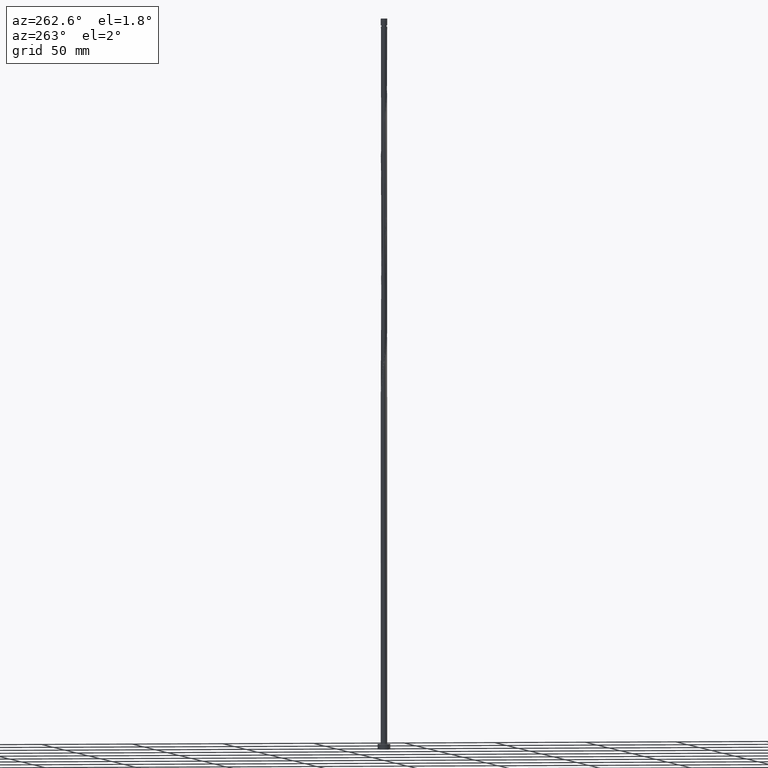
[diagram: clean part render]
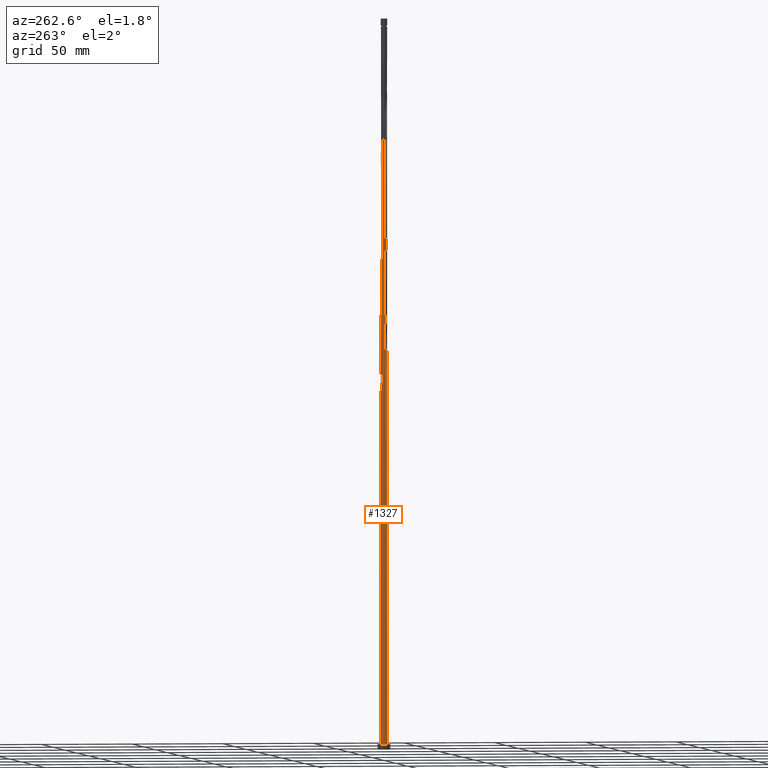
[diagram: same view with one face highlighted and labeled with its STEP entity id]
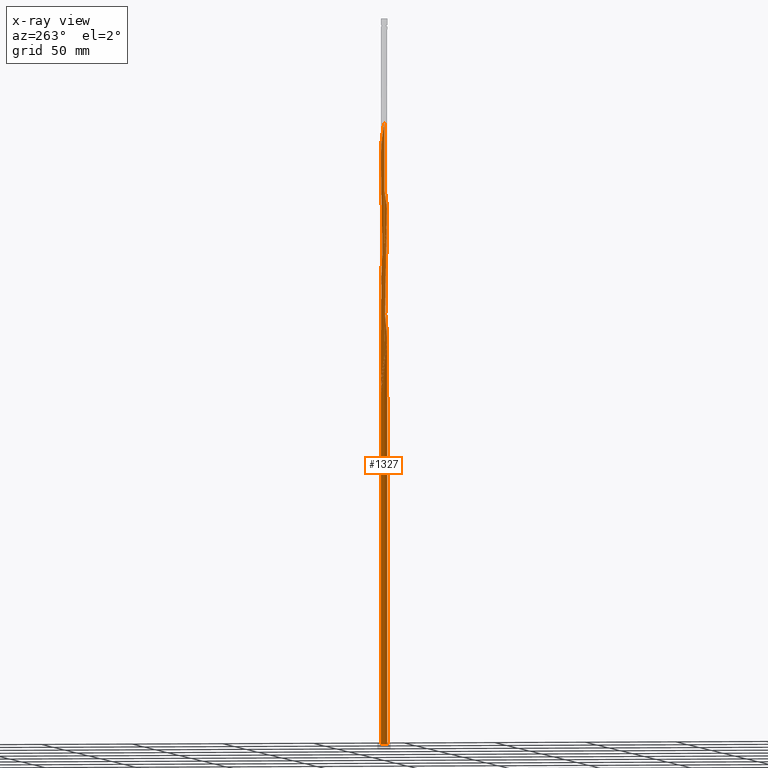
[diagram: x-ray of the same camera — body ghosted, the highlighted face saturated]
A machine part, auxiliary view. The second image highlights one B-rep face of the part: STEP entity #1327.
The next image is the same camera in x-ray: the body ghosted, the highlighted face saturated — about 0% of this face is hidden behind the body in this view.
In plain terms, the highlighted cylindrical surface (bore or boss wall) has radius 1.75 mm, axis along (-0, -0, -1).
Its self-contained STEP definition (entity closure, byte-faithful):
#5 = CARTESIAN_POINT ( 'NONE',  ( 1.507515167182444271, -0.8887620720501611116, 304.4751674120614666 ) ) ;
#7 = CARTESIAN_POINT ( 'NONE',  ( -1.742006628276570046, 0.1670715626325919301, 213.3640563009503239 ) ) ;
#13 = CARTESIAN_POINT ( 'NONE',  ( 0.3794151541219238366, 1.708374707382032565, 324.4751674120615235 ) ) ;
#15 = CARTESIAN_POINT ( 'NONE',  ( -1.432935985591727190, 1.021286244534576282, 207.8085007453948094 ) ) ;
#19 = CARTESIAN_POINT ( 'NONE',  ( 0.1998577369553105887, 1.748252847004226451, 325.5862785231725525 ) ) ;
#52 = DIRECTION ( 'NONE',  ( -0.000000000000000000, -0.000000000000000000, -1.000000000000000000 ) ) ;
#86 = CARTESIAN_POINT ( 'NONE',  ( 0.3794151541219238366, 1.708374707382032565, 257.8085007453947810 ) ) ;
#96 = CARTESIAN_POINT ( 'NONE',  ( 1.669203472836608748, 0.5256041916406426484, 246.6973896342837236 ) ) ;
#103 = CARTESIAN_POINT ( 'NONE',  ( -1.523448115906757439, -0.8611653953452617083, 282.2529451898392949 ) ) ;
#111 = VERTEX_POINT ( 'NONE', #820 ) ;
#113 = CARTESIAN_POINT ( 'NONE',  ( -1.523448115906757439, -0.8611653953452617083, 215.5862785231725240 ) ) ;
#123 = CARTESIAN_POINT ( 'NONE',  ( -0.1998577369553103666, -1.748252847004226229, 225.5862785231724956 ) ) ;
#133 = CARTESIAN_POINT ( 'NONE',  ( 0.7263150966484994697, 1.592157774964682915, 322.2529451898392381 ) ) ;
#143 = CARTESIAN_POINT ( 'NONE',  ( 0.5589725712885353914, 1.668496567759838900, 323.3640563009503239 ) ) ;
#151 = ORIENTED_EDGE ( 'NONE', *, *, #1837, .F. ) ;
#155 = CARTESIAN_POINT ( 'NONE',  ( -0.01593294872431299039, -1.749927467395422598, 293.3640563009503808 ) ) ;
#168 = CARTESIAN_POINT ( 'NONE',  ( 1.600927825098414692, -0.7303158432520414634, 305.5862785231724956 ) ) ;
#170 = CARTESIAN_POINT ( 'NONE',  ( -1.189285546401575466, 1.296892833351922736, 205.5862785231724956 ) ) ;
#184 = CARTESIAN_POINT ( 'NONE',  ( -1.311110765996650995, 1.159089538943249398, 206.6973896342836952 ) ) ;
#189 = FACE_OUTER_BOUND ( 'NONE', #1037, .T. ) ;
#231 = CARTESIAN_POINT ( 'NONE',  ( -0.7263150966484992477, -1.592157774964682915, 222.2529451898392381 ) ) ;
#243 = CARTESIAN_POINT ( 'NONE',  ( -1.613960246221784356, -0.7010445461559460245, 281.1418340787280385 ) ) ;
#253 = CARTESIAN_POINT ( 'NONE',  ( -0.5284993664679561443, 1.678397912213384524, 263.3640563009503239 ) ) ;
#257 = CARTESIAN_POINT ( 'NONE',  ( -1.600927825098414692, 0.7303158432520412413, 205.5862785231724956 ) ) ;
#264 = CARTESIAN_POINT ( 'NONE',  ( 1.289788318714685911, -1.182770515741389250, 235.5862785231725525 ) ) ;
#273 = CARTESIAN_POINT ( 'NONE',  ( -0.5589725712885353914, -1.668496567759838900, 223.3640563009502671 ) ) ;
#280 = DIRECTION ( 'NONE',  ( 0.000000000000000000, 0.000000000000000000, 1.000000000000000000 ) ) ;
#282 = CARTESIAN_POINT ( 'NONE',  ( -1.738675734985623222, 0.1987628953608089888, 342.2529451898391812 ) ) ;
#291 = CARTESIAN_POINT ( 'NONE',  ( -1.750000000000002442, -3.811845932269377646E-16, 343.4608352796510076 ) ) ;
#312 = CARTESIAN_POINT ( 'NONE',  ( -1.414102509266473851, 1.047208300848279761, 336.6973896342836383 ) ) ;
#314 = CARTESIAN_POINT ( 'NONE',  ( -1.041471584205018397, 1.406355907760723500, 204.4751674120614666 ) ) ;
#319 = ORIENTED_EDGE ( 'NONE', *, *, #496, .F. ) ;
#321 = CARTESIAN_POINT ( 'NONE',  ( -0.3794151541219228929, -1.708374707382032787, 291.1418340787280954 ) ) ;
#356 = VERTEX_POINT ( 'NONE', #1515 ) ;
#389 = CARTESIAN_POINT ( 'NONE',  ( -1.165474128162897083, 1.318332730634499184, 267.8085007453947242 ) ) ;
#394 = CARTESIAN_POINT ( 'NONE',  ( -1.750000000000000000, 2.242262313099648157E-17, 214.3783884333606977 ) ) ;
#398 = CARTESIAN_POINT ( 'NONE',  ( -1.432935985591729633, -1.021286244534576948, 216.6973896342836383 ) ) ;
#400 = CARTESIAN_POINT ( 'NONE',  ( -1.165474128162897083, 1.318332730634499184, 201.1418340787280954 ) ) ;
#407 = CARTESIAN_POINT ( 'NONE',  ( -0.3482456029873203796, 1.715000000000001856, 262.2529451898392949 ) ) ;
#410 = CARTESIAN_POINT ( 'NONE',  ( -1.289788318714686133, 1.182770515741389250, 202.2529451898392381 ) ) ;
#417 = CARTESIAN_POINT ( 'NONE',  ( 1.432935985591729633, 1.021286244534576282, 250.0307229676169811 ) ) ;
#426 = CARTESIAN_POINT ( 'NONE',  ( 1.724446699451431808, 0.3501638371253400495, 245.5862785231724672 ) ) ;
#437 = CARTESIAN_POINT ( 'NONE',  ( 1.041471584205020617, 1.406355907760725055, 320.0307229676170095 ) ) ;
#470 = CARTESIAN_POINT ( 'NONE',  ( 1.414102509266473851, -1.047208300848279983, 303.3640563009503239 ) ) ;
#472 = CARTESIAN_POINT ( 'NONE',  ( -1.724446699451429366, 0.3501638371253402160, 212.2529451898392381 ) ) ;
#476 = CARTESIAN_POINT ( 'NONE',  ( -1.041471584205020395, -1.406355907760725055, 286.6973896342836952 ) ) ;
#481 = VERTEX_POINT ( 'NONE', #1437 ) ;
#496 = EDGE_CURVE ( 'NONE', #1109, #1376, #545, .T. ) ;
#521 = CIRCLE ( 'NONE', #791, 1.750000000000000000 ) ;
#525 = CARTESIAN_POINT ( 'NONE',  ( -1.750000000000002220, 7.399465633228792017E-16, 210.1275019463177216 ) ) ;
#532 = CARTESIAN_POINT ( 'NONE',  ( -1.041471584205020395, -1.406355907760725055, 220.0307229676170380 ) ) ;
#543 = CARTESIAN_POINT ( 'NONE',  ( -1.717784912869533498, 0.3815050788614610111, 274.4751674120613529 ) ) ;
#545 = LINE ( 'NONE', #1305, #1777 ) ;
#551 = CARTESIAN_POINT ( 'NONE',  ( 0.8936576220084639921, 1.515818982169525153, 254.4751674120614382 ) ) ;
#559 = CARTESIAN_POINT ( 'NONE',  ( -1.311110765996653660, -1.159089538943250286, 217.8085007453947242 ) ) ;
#568 = CARTESIAN_POINT ( 'NONE',  ( -1.613960246221784356, -0.7010445461559460245, 214.4751674120614098 ) ) ;
#576 = CARTESIAN_POINT ( 'NONE',  ( -0.1998577369553103666, -1.748252847004226229, 292.2529451898390676 ) ) ;
#583 = DIRECTION ( 'NONE',  ( 0.000000000000000000, -3.965082230804130772E-14, -1.000000000000000000 ) ) ;
#585 = VERTEX_POINT ( 'NONE', #1147 ) ;
#586 = CARTESIAN_POINT ( 'NONE',  ( -1.659356368983974317, 0.5559104610567513483, 340.0307229676170095 ) ) ;
#594 = CARTESIAN_POINT ( 'NONE',  ( -0.6972041507806028271, 1.605118803121534654, 331.1418340787281522 ) ) ;
#595 = EDGE_CURVE ( 'NONE', #1376, #356, #1802, .T. ) ;
#597 = CARTESIAN_POINT ( 'NONE',  ( -1.523448115906754330, 0.8611653953452607091, 208.9196118565058384 ) ) ;
#605 = CARTESIAN_POINT ( 'NONE',  ( 1.759566557101712281, -0.01602071186015776444, 310.0307229676170095 ) ) ;
#611 = CARTESIAN_POINT ( 'NONE',  ( -1.289788318714686133, 1.182770515741389250, 335.5862785231724956 ) ) ;
#654 = ORIENTED_EDGE ( 'NONE', *, *, #496, .T. ) ;
#670 = CARTESIAN_POINT ( 'NONE',  ( 0.1998577369553105887, 1.748252847004226451, 258.9196118565058100 ) ) ;
#678 = AXIS2_PLACEMENT_3D ( 'NONE', #1810, #52, #1065 ) ;
#681 = ORIENTED_EDGE ( 'NONE', *, *, #883, .F. ) ;
#682 = CARTESIAN_POINT ( 'NONE',  ( 1.613960246221785244, 0.7010445461559453584, 247.8085007453947810 ) ) ;
#690 = CARTESIAN_POINT ( 'NONE',  ( -0.01593294872431299039, -1.749927467395422598, 226.6973896342836383 ) ) ;
#702 = CARTESIAN_POINT ( 'NONE',  ( 1.523448115906757439, 0.8611653953452615973, 248.9196118565058953 ) ) ;
#704 = CARTESIAN_POINT ( 'NONE',  ( -0.6972041507806028271, 1.605118803121534654, 197.8085007453947526 ) ) ;
#712 = CARTESIAN_POINT ( 'NONE',  ( 0.6972041507806024940, -1.605118803121534876, 231.1418340787281238 ) ) ;
#720 = CARTESIAN_POINT ( 'NONE',  ( 0.000000000000000000, 0.000000000000000000, 195.5862785231725525 ) ) ;
#722 = CARTESIAN_POINT ( 'NONE',  ( 1.015691531628073019, -1.425086212332092650, 300.0307229676170095 ) ) ;
#724 = DIRECTION ( 'NONE',  ( 1.000000000000000000, 0.000000000000000000, 0.000000000000000000 ) ) ;
#731 = CARTESIAN_POINT ( 'NONE',  ( 0.3482456029873206571, -1.715000000000001856, 295.5862785231726093 ) ) ;
#740 = CARTESIAN_POINT ( 'NONE',  ( 1.613960246221785244, 0.7010445461559453584, 314.4751674120614666 ) ) ;
#748 = CARTESIAN_POINT ( 'NONE',  ( -0.8936576220084627709, -1.515818982169526263, 287.8085007453947810 ) ) ;
#750 = CARTESIAN_POINT ( 'NONE',  ( -0.5589725712885339481, 1.668496567759836902, 201.1418340787280670 ) ) ;
#757 = CARTESIAN_POINT ( 'NONE',  ( 1.659356368983974539, -0.5559104610567517923, 306.6973896342836383 ) ) ;
#769 = EDGE_CURVE ( 'NONE', #111, #1109, #1687, .T. ) ;
#791 = AXIS2_PLACEMENT_3D ( 'NONE', #720, #583, #1045 ) ;
#799 = CARTESIAN_POINT ( 'NONE',  ( -1.750000000000002220, 7.399465633228792017E-16, 210.1275019463176932 ) ) ;
#806 = CARTESIAN_POINT ( 'NONE',  ( -1.750000000000000000, 0.000000000000000000, 3.000000000000000000 ) ) ;
#819 = CARTESIAN_POINT ( 'NONE',  ( 1.311110765996654326, 1.159089538943249398, 251.1418340787280954 ) ) ;
#820 = CARTESIAN_POINT ( 'NONE',  ( -0.3482456029873203796, 1.715000000000001634, 195.5862785231724956 ) ) ;
#831 = CARTESIAN_POINT ( 'NONE',  ( -1.432935985591729633, -1.021286244534576948, 283.3640563009503808 ) ) ;
#842 = CARTESIAN_POINT ( 'NONE',  ( -1.289788318714686133, 1.182770515741389250, 268.9196118565059237 ) ) ;
#846 = CARTESIAN_POINT ( 'NONE',  ( -1.659356368983974317, 0.5559104610567513483, 206.6973896342837236 ) ) ;
#851 = CARTESIAN_POINT ( 'NONE',  ( 1.015691531628073019, -1.425086212332092650, 233.3640563009503239 ) ) ;
#860 = CIRCLE ( 'NONE', #950, 1.750000000000000000 ) ;
#862 = CARTESIAN_POINT ( 'NONE',  ( -1.189285546401577243, -1.296892833351924068, 218.9196118565058384 ) ) ;
#871 = CARTESIAN_POINT ( 'NONE',  ( 1.669203472836608748, 0.5256041916406426484, 313.3640563009503239 ) ) ;
#878 = CARTESIAN_POINT ( 'NONE',  ( 0.5284993664679553671, -1.678397912213385634, 296.6973896342835815 ) ) ;
#881 = CARTESIAN_POINT ( 'NONE',  ( -1.750000000000000000, 2.242262313099648157E-17, 214.3783884333606977 ) ) ;
#883 = EDGE_CURVE ( 'NONE', #1508, #481, #1878, .T. ) ;
#890 =( BOUNDED_CURVE ( )  B_SPLINE_CURVE ( 2, ( #525, #1105, #1392, #1240, #1137, #568, #113, #398, #559, #862, #532, #1874, #231, #273, #1004, #123, #690, #1570, #1283, #1708, #712, #1145, #851, #1302, #264, #1013, #1115, #1435, #1733, #1418, #1849, #1446, #1725, #426, #96, #682, #702, #417, #819, #1152, #984, #551, #1717, #1410, #86, #670, #1263, #1274, #407, #253, #1829, #1698, #1589, #389, #842, #1840, #975, #1561, #1427, #543, #1125, #992, #1293, #1860, #1581, #243, #103, #831, #1633, #1465, #476, #748, #1332, #1474, #321, #576, #155, #1774, #731, #878, #1493, #910, #722, #1626, #1197, #470, #5, #168, #757, #1187, #1312, #605, #899, #1883, #871, #740, #1344, #1163, #1182, #1742, #437, #1351, #133, #143, #13, #19, #1598, #1022, #1452, #1607, #594, #1748, #1321, #1762, #611, #312, #1047, #1893, #586, #1483, #282, #1172, #291 ),
 .UNSPECIFIED., .F., .T. ) 
 B_SPLINE_CURVE_WITH_KNOTS ( ( 3, 2, 2, 2, 2, 2, 2, 2, 2, 2, 2, 2, 2, 2, 2, 2, 2, 2, 2, 2, 2, 2, 2, 2, 2, 2, 2, 2, 2, 2, 2, 2, 2, 2, 2, 2, 2, 2, 2, 2, 2, 2, 2, 2, 2, 2, 2, 2, 2, 2, 2, 2, 2, 2, 2, 2, 2, 2, 2, 2, 2, 3 ),
 ( 0.05452860127731142675, 0.05833333333333334814, 0.06666666666666665186, 0.07499999999999995559, 0.08333333333333337034, 0.09166666666666667407, 0.09999999999999997780, 0.1083333333333332815, 0.1166666666666666963, 0.1250000000000000000, 0.1333333333333333037, 0.1416666666666667185, 0.1500000000000000222, 0.1583333333333333259, 0.1666666666666666297, 0.1750000000000000444, 0.1833333333333333481, 0.1916666666666666519, 0.1999999999999999556, 0.2083333333333333703, 0.2166666666666666741, 0.2249999999999999778, 0.2333333333333332815, 0.2416666666666666963, 0.2500000000000000000, 0.2583333333333333037, 0.2666666666666667185, 0.2750000000000000222, 0.2833333333333333259, 0.2916666666666666297, 0.3000000000000000444, 0.3083333333333333481, 0.3166666666666666519, 0.3249999999999999556, 0.3333333333333333703, 0.3416666666666666741, 0.3499999999999999778, 0.3583333333333332815, 0.3666666666666666963, 0.3750000000000000000, 0.3833333333333333037, 0.3916666666666667185, 0.4000000000000000222, 0.4083333333333333259, 0.4166666666666666297, 0.4250000000000000444, 0.4333333333333333481, 0.4416666666666666519, 0.4499999999999999556, 0.4583333333333333703, 0.4666666666666666741, 0.4749999999999999778, 0.4833333333333332815, 0.4916666666666666963, 0.5000000000000000000, 0.5083333333333333037, 0.5166666666666666075, 0.5250000000000000222, 0.5333333333333333259, 0.5416666666666667407, 0.5500000000000000444, 0.5545286012773110729 ),
 .UNSPECIFIED. ) 
 CURVE ( )  GEOMETRIC_REPRESENTATION_ITEM ( )  RATIONAL_B_SPLINE_CURVE ( ( 0.9066196499552863219, 0.9068171577856990462, 0.9090909090909981005, 0.9041108139712461522, 0.9090909090909981005, 0.9041108139712461522, 0.9090909090909981005, 0.9041108139712461522, 0.9090909090909981005, 0.9041108139712461522, 0.9090909090909981005, 0.9041108139712461522, 0.9090909090909981005, 0.9041108139712461522, 0.9090909090909981005, 0.9041108139712461522, 0.9090909090909981005, 0.9041108139712461522, 0.9090909090909981005, 0.9041108139712461522, 0.9090909090909981005, 0.9041108139712461522, 0.9090909090909981005, 0.9041108139712461522, 0.9090909090909981005, 0.9041108139712461522, 0.9090909090909981005, 0.9041108139712461522, 0.9090909090909981005, 0.9041108139712461522, 0.9090909090909981005, 0.9041108139712461522, 0.9090909090909981005, 0.9041108139712461522, 0.9090909090909981005, 0.9041108139712461522, 0.9090909090909981005, 0.9041108139712461522, 0.9090909090909981005, 0.9041108139712461522, 0.9090909090909981005, 0.9041108139712461522, 0.9090909090909981005, 0.9041108139712461522, 0.9090909090909981005, 0.9041108139712461522, 0.9090909090909981005, 0.9041108139712461522, 0.9090909090909981005, 0.9041108139712461522, 0.9090909090909981005, 0.9041108139712461522, 0.9090909090909981005, 0.9041108139712461522, 0.9090909090909981005, 0.9041108139712461522, 0.9090909090909981005, 0.9041108139712461522, 0.9090909090909981005, 0.9041108139712461522, 0.9090909090909981005, 0.9041108139712461522, 0.9090909090909981005, 0.9041108139712461522, 0.9090909090909981005, 0.9041108139712461522, 0.9090909090909981005, 0.9041108139712461522, 0.9090909090909981005, 0.9041108139712461522, 0.9090909090909981005, 0.9041108139712461522, 0.9090909090909981005, 0.9041108139712461522, 0.9090909090909981005, 0.9041108139712461522, 0.9090909090909981005, 0.9041108139712461522, 0.9090909090909981005, 0.9041108139712461522, 0.9090909090909981005, 0.9041108139712461522, 0.9090909090909981005, 0.9041108139712461522, 0.9090909090909981005, 0.9041108139712461522, 0.9090909090909981005, 0.9041108139712461522, 0.9090909090909981005, 0.9041108139712461522, 0.9090909090909981005, 0.9041108139712461522, 0.9090909090909981005, 0.9041108139712461522, 0.9090909090909981005, 0.9041108139712461522, 0.9090909090909981005, 0.9041108139712461522, 0.9090909090909981005, 0.9041108139712461522, 0.9090909090909981005, 0.9041108139712461522, 0.9090909090909981005, 0.9041108139712461522, 0.9090909090909981005, 0.9041108139712461522, 0.9090909090909981005, 0.9041108139712461522, 0.9090909090909981005, 0.9041108139712461522, 0.9090909090909981005, 0.9041108139712461522, 0.9090909090909981005, 0.9041108139712461522, 0.9090909090909981005, 0.9041108139712461522, 0.9090909090909981005, 0.9041108139712461522, 0.9090909090909981005, 0.9041108139712461522, 0.9090909090909981005, 0.9063845652765454286, 0.9066196499552863219 ) ) 
 REPRESENTATION_ITEM ( '' )  );
#899 = CARTESIAN_POINT ( 'NONE',  ( 1.742006628276572933, 0.1670715626325904035, 311.1418340787281522 ) ) ;
#910 = CARTESIAN_POINT ( 'NONE',  ( 0.8659089350932493989, -1.531839694029683896, 298.9196118565058669 ) ) ;
#912 = CARTESIAN_POINT ( 'NONE',  ( -0.3794151541219216162, 1.708374707382030344, 200.0307229676170095 ) ) ;
#921 = CARTESIAN_POINT ( 'NONE',  ( -1.669203472836606084, 0.5256041916406432035, 211.1418340787280670 ) ) ;
#950 = AXIS2_PLACEMENT_3D ( 'NONE', #1595, #280, #1181 ) ;
#975 = CARTESIAN_POINT ( 'NONE',  ( -1.507515167182444493, 0.8887620720501606675, 271.1418340787281522 ) ) ;
#984 = CARTESIAN_POINT ( 'NONE',  ( 1.041471584205020617, 1.406355907760725055, 253.3640563009503239 ) ) ;
#986 = CARTESIAN_POINT ( 'NONE',  ( -1.414102509266473851, 1.047208300848279761, 203.3640563009502955 ) ) ;
#992 = CARTESIAN_POINT ( 'NONE',  ( -1.759566557101712281, 0.01602071186015718157, 276.6973896342835246 ) ) ;
#994 = CARTESIAN_POINT ( 'NONE',  ( 0.000000000000000000, 0.000000000000000000, 3.000000000000000000 ) ) ;
#1004 = CARTESIAN_POINT ( 'NONE',  ( -0.3794151541219228929, -1.708374707382032787, 224.4751674120614098 ) ) ;
#1006 = CARTESIAN_POINT ( 'NONE',  ( -0.5284993664679561443, 1.678397912213384524, 196.6973896342835531 ) ) ;
#1013 = CARTESIAN_POINT ( 'NONE',  ( 1.414102509266473851, -1.047208300848279983, 236.6973896342836383 ) ) ;
#1022 = CARTESIAN_POINT ( 'NONE',  ( -0.1679918395066840875, 1.751602087786618522, 327.8085007453947242 ) ) ;
#1037 = EDGE_LOOP ( 'NONE', ( #151, #1186, #654, #1645, #1693, #319, #1409, #1391, #681 ) ) ;
#1045 = DIRECTION ( 'NONE',  ( 0.000000000000000000, 1.000000000000000000, -4.758098676964956422E-14 ) ) ;
#1047 = CARTESIAN_POINT ( 'NONE',  ( -1.507515167182444493, 0.8887620720501606675, 337.8085007453948378 ) ) ;
#1050 = CARTESIAN_POINT ( 'NONE',  ( -1.613960246221781913, 0.7010445461559460245, 210.0307229676169243 ) ) ;
#1065 = DIRECTION ( 'NONE',  ( -1.000000000000000000, 0.000000000000000000, 0.000000000000000000 ) ) ;
#1105 = CARTESIAN_POINT ( 'NONE',  ( -1.750000000000002220, -0.08372699875181301155, 210.6360504718817879 ) ) ;
#1109 = VERTEX_POINT ( 'NONE', #799 ) ;
#1111 = EDGE_CURVE ( 'NONE', #1109, #585, #890, .T. ) ;
#1115 = CARTESIAN_POINT ( 'NONE',  ( 1.507515167182444271, -0.8887620720501611116, 237.8085007453948094 ) ) ;
#1125 = CARTESIAN_POINT ( 'NONE',  ( -1.738675734985623222, 0.1987628953608089888, 275.5862785231726093 ) ) ;
#1137 = CARTESIAN_POINT ( 'NONE',  ( -1.669203472836608748, -0.5256041916406433145, 213.3640563009503239 ) ) ;
#1139 = CARTESIAN_POINT ( 'NONE',  ( -1.750000000000002220, 0.09970404053125592192, 209.5219106369331143 ) ) ;
#1145 = CARTESIAN_POINT ( 'NONE',  ( 0.8659089350932493989, -1.531839694029683896, 232.2529451898391528 ) ) ;
#1147 = CARTESIAN_POINT ( 'NONE',  ( -1.750000000000002442, -3.811845932269377646E-16, 343.4608352796509507 ) ) ;
#1152 = CARTESIAN_POINT ( 'NONE',  ( 1.189285546401577465, 1.296892833351924068, 252.2529451898392097 ) ) ;
#1163 = CARTESIAN_POINT ( 'NONE',  ( 1.432935985591729633, 1.021286244534576282, 316.6973896342835815 ) ) ;
#1172 = CARTESIAN_POINT ( 'NONE',  ( -1.750000000000001554, 0.09970404053126367960, 342.8552439702663719 ) ) ;
#1175 = CARTESIAN_POINT ( 'NONE',  ( 0.3482456029873209902, 1.714999999999998970, 195.5862785231724956 ) ) ;
#1181 = DIRECTION ( 'NONE',  ( 1.000000000000000000, 0.000000000000000000, 0.000000000000000000 ) ) ;
#1182 = CARTESIAN_POINT ( 'NONE',  ( 1.311110765996654326, 1.159089538943249398, 317.8085007453947810 ) ) ;
#1186 = ORIENTED_EDGE ( 'NONE', *, *, #1111, .F. ) ;
#1187 = CARTESIAN_POINT ( 'NONE',  ( 1.717784912869533498, -0.3815050788614620103, 307.8085007453948378 ) ) ;
#1190 = CARTESIAN_POINT ( 'NONE',  ( -0.8936576220084611055, 1.515818982169524709, 203.3640563009502955 ) ) ;
#1197 = CARTESIAN_POINT ( 'NONE',  ( 1.289788318714685911, -1.182770515741389250, 302.2529451898391812 ) ) ;
#1199 = AXIS2_PLACEMENT_3D ( 'NONE', #994, #1583, #724 ) ;
#1240 = CARTESIAN_POINT ( 'NONE',  ( -1.724446699451431808, -0.3501638371253402715, 212.2529451898392097 ) ) ;
#1263 = CARTESIAN_POINT ( 'NONE',  ( 0.01593294872431320203, 1.749927467395422598, 260.0307229676170095 ) ) ;
#1274 = CARTESIAN_POINT ( 'NONE',  ( -0.1679918395066840875, 1.751602087786618522, 261.1418340787279817 ) ) ;
#1283 = CARTESIAN_POINT ( 'NONE',  ( 0.3482456029873206571, -1.715000000000001856, 228.9196118565059237 ) ) ;
#1285 = CARTESIAN_POINT ( 'NONE',  ( -1.738675734985623222, 0.1987628953608089888, 208.9196118565058953 ) ) ;
#1293 = CARTESIAN_POINT ( 'NONE',  ( -1.742006628276572933, -0.1670715626325913472, 277.8085007453948947 ) ) ;
#1297 = CARTESIAN_POINT ( 'NONE',  ( -1.750000000000002220, 7.399465633228792017E-16, 210.1275019463177216 ) ) ;
#1302 = CARTESIAN_POINT ( 'NONE',  ( 1.165474128162896861, -1.318332730634499184, 234.4751674120613814 ) ) ;
#1305 = CARTESIAN_POINT ( 'NONE',  ( -1.750000000000000000, 0.000000000000000000, 400.0000000000000000 ) ) ;
#1309 = DIRECTION ( 'NONE',  ( -0.000000000000000000, -0.000000000000000000, -1.000000000000000000 ) ) ;
#1312 = CARTESIAN_POINT ( 'NONE',  ( 1.738675734985623222, -0.1987628953608090721, 308.9196118565059805 ) ) ;
#1321 = CARTESIAN_POINT ( 'NONE',  ( -1.015691531628073685, 1.425086212332091762, 333.3640563009503239 ) ) ;
#1327 = ADVANCED_FACE ( 'NONE', ( #189 ), #1801, .T. ) ;
#1332 = CARTESIAN_POINT ( 'NONE',  ( -0.7263150966484992477, -1.592157774964682915, 288.9196118565058669 ) ) ;
#1334 = CARTESIAN_POINT ( 'NONE',  ( -0.1998577369553097005, 1.748252847004224009, 198.9196118565058953 ) ) ;
#1344 = CARTESIAN_POINT ( 'NONE',  ( 1.523448115906757439, 0.8611653953452615973, 315.5862785231725525 ) ) ;
#1347 = CARTESIAN_POINT ( 'NONE',  ( -0.7263150966484975823, 1.592157774964680916, 202.2529451898392097 ) ) ;
#1351 = CARTESIAN_POINT ( 'NONE',  ( 0.8936576220084639921, 1.515818982169525153, 321.1418340787279817 ) ) ;
#1354 = CARTESIAN_POINT ( 'NONE',  ( 0.1679918395066855308, 1.751602087786616080, 196.6973896342836667 ) ) ;
#1376 = VERTEX_POINT ( 'NONE', #806 ) ;
#1391 = ORIENTED_EDGE ( 'NONE', *, *, #1782, .T. ) ;
#1392 = CARTESIAN_POINT ( 'NONE',  ( -1.742006628276572933, -0.1670715626325913472, 211.1418340787281522 ) ) ;
#1409 = ORIENTED_EDGE ( 'NONE', *, *, #769, .F. ) ;
#1410 = CARTESIAN_POINT ( 'NONE',  ( 0.5589725712885353914, 1.668496567759838900, 256.6973896342836383 ) ) ;
#1418 = CARTESIAN_POINT ( 'NONE',  ( 1.717784912869533498, -0.3815050788614620103, 241.1418340787280670 ) ) ;
#1427 = CARTESIAN_POINT ( 'NONE',  ( -1.659356368983974317, 0.5559104610567513483, 273.3640563009503239 ) ) ;
#1435 = CARTESIAN_POINT ( 'NONE',  ( 1.600927825098414692, -0.7303158432520414634, 238.9196118565058384 ) ) ;
#1437 = CARTESIAN_POINT ( 'NONE',  ( 0.3482456029873209902, 1.714999999999998970, 195.5862785231724956 ) ) ;
#1446 = CARTESIAN_POINT ( 'NONE',  ( 1.759566557101712281, -0.01602071186015776444, 243.3640563009503239 ) ) ;
#1452 = CARTESIAN_POINT ( 'NONE',  ( -0.3482456029873203796, 1.715000000000001856, 328.9196118565059237 ) ) ;
#1457 = CARTESIAN_POINT ( 'NONE',  ( -1.015691531628073685, 1.425086212332091762, 200.0307229676169811 ) ) ;
#1463 = LINE ( 'NONE', #1631, #1820 ) ;
#1465 = CARTESIAN_POINT ( 'NONE',  ( -1.189285546401577243, -1.296892833351924068, 285.5862785231724956 ) ) ;
#1474 = CARTESIAN_POINT ( 'NONE',  ( -0.5589725712885353914, -1.668496567759838900, 290.0307229676168959 ) ) ;
#1483 = CARTESIAN_POINT ( 'NONE',  ( -1.717784912869533498, 0.3815050788614610111, 341.1418340787280385 ) ) ;
#1493 = CARTESIAN_POINT ( 'NONE',  ( 0.6972041507806024940, -1.605118803121534876, 297.8085007453947810 ) ) ;
#1508 = VERTEX_POINT ( 'NONE', #394 ) ;
#1515 = CARTESIAN_POINT ( 'NONE',  ( 1.750000000000000000, 0.000000000000000000, 3.000000000000000000 ) ) ;
#1561 = CARTESIAN_POINT ( 'NONE',  ( -1.600927825098414692, 0.7303158432520412413, 272.2529451898391812 ) ) ;
#1570 = CARTESIAN_POINT ( 'NONE',  ( 0.1679918395066850867, -1.751602087786618300, 227.8085007453947526 ) ) ;
#1574 = CARTESIAN_POINT ( 'NONE',  ( -1.507515167182444493, 0.8887620720501606675, 204.4751674120614666 ) ) ;
#1581 = CARTESIAN_POINT ( 'NONE',  ( -1.669203472836608748, -0.5256041916406433145, 280.0307229676170664 ) ) ;
#1583 = DIRECTION ( 'NONE',  ( 0.000000000000000000, 0.000000000000000000, 1.000000000000000000 ) ) ;
#1589 = CARTESIAN_POINT ( 'NONE',  ( -1.015691531628073685, 1.425086212332091762, 266.6973896342836383 ) ) ;
#1592 = CARTESIAN_POINT ( 'NONE',  ( -1.717784912869533498, 0.3815050788614610111, 207.8085007453947810 ) ) ;
#1595 = CARTESIAN_POINT ( 'NONE',  ( 0.000000000000000000, 0.000000000000000000, 3.000000000000000000 ) ) ;
#1598 = CARTESIAN_POINT ( 'NONE',  ( 0.01593294872431320203, 1.749927467395422598, 326.6973896342836383 ) ) ;
#1607 = CARTESIAN_POINT ( 'NONE',  ( -0.5284993664679561443, 1.678397912213384524, 330.0307229676168959 ) ) ;
#1610 = CARTESIAN_POINT ( 'NONE',  ( -1.749999999999999778, 0.08372699875181570384, 213.8698399077966315 ) ) ;
#1626 = CARTESIAN_POINT ( 'NONE',  ( 1.165474128162896861, -1.318332730634499184, 301.1418340787281522 ) ) ;
#1631 = CARTESIAN_POINT ( 'NONE',  ( -1.750000000000000000, 0.000000000000000000, 400.0000000000000000 ) ) ;
#1633 = CARTESIAN_POINT ( 'NONE',  ( -1.311110765996653660, -1.159089538943250286, 284.4751674120615803 ) ) ;
#1645 = ORIENTED_EDGE ( 'NONE', *, *, #595, .T. ) ;
#1687 =( BOUNDED_CURVE ( )  B_SPLINE_CURVE ( 2, ( #1843, #1006, #704, #1719, #1457, #400, #410, #986, #1574, #257, #846, #1592, #1285, #1139, #1297 ),
 .UNSPECIFIED., .F., .T. ) 
 B_SPLINE_CURVE_WITH_KNOTS ( ( 3, 2, 2, 2, 2, 2, 2, 3 ),
 ( 0.000000000000000000, 0.008333333333333303727, 0.01666666666666671848, 0.02500000000000002220, 0.03333333333333332593, 0.04166666666666662966, 0.05000000000000004441, 0.05452860127731142675 ),
 .UNSPECIFIED. ) 
 CURVE ( )  GEOMETRIC_REPRESENTATION_ITEM ( )  RATIONAL_B_SPLINE_CURVE ( ( 0.9090909090909981005, 0.9041108139712461522, 0.9090909090909981005, 0.9041108139712461522, 0.9090909090909981005, 0.9041108139712461522, 0.9090909090909981005, 0.9041108139712461522, 0.9090909090909981005, 0.9041108139712461522, 0.9090909090909981005, 0.9041108139712461522, 0.9090909090909981005, 0.9063845652765452066, 0.9066196499552863219 ) ) 
 REPRESENTATION_ITEM ( '' )  );
#1693 = ORIENTED_EDGE ( 'NONE', *, *, #1805, .T. ) ;
#1698 = CARTESIAN_POINT ( 'NONE',  ( -0.8659089350932495099, 1.531839694029683674, 265.5862785231724956 ) ) ;
#1708 = CARTESIAN_POINT ( 'NONE',  ( 0.5284993664679553671, -1.678397912213385634, 230.0307229676169527 ) ) ;
#1711 = DIRECTION ( 'NONE',  ( -0.000000000000000000, -0.000000000000000000, -1.000000000000000000 ) ) ;
#1717 = CARTESIAN_POINT ( 'NONE',  ( 0.7263150966484994697, 1.592157774964682915, 255.5862785231725525 ) ) ;
#1719 = CARTESIAN_POINT ( 'NONE',  ( -0.8659089350932495099, 1.531839694029683674, 198.9196118565058669 ) ) ;
#1725 = CARTESIAN_POINT ( 'NONE',  ( 1.742006628276572933, 0.1670715626325904035, 244.4751674120614950 ) ) ;
#1733 = CARTESIAN_POINT ( 'NONE',  ( 1.659356368983974539, -0.5559104610567517923, 240.0307229676169811 ) ) ;
#1742 = CARTESIAN_POINT ( 'NONE',  ( 1.189285546401577465, 1.296892833351924068, 318.9196118565058100 ) ) ;
#1748 = CARTESIAN_POINT ( 'NONE',  ( -0.8659089350932495099, 1.531839694029683674, 332.2529451898391812 ) ) ;
#1762 = CARTESIAN_POINT ( 'NONE',  ( -1.165474128162897083, 1.318332730634499184, 334.4751674120613529 ) ) ;
#1774 = CARTESIAN_POINT ( 'NONE',  ( 0.1679918395066850867, -1.751602087786618300, 294.4751674120614666 ) ) ;
#1777 = VECTOR ( 'NONE', #1711, 1000.000000000000000 ) ;
#1782 = EDGE_CURVE ( 'NONE', #111, #481, #521, .T. ) ;
#1801 = CYLINDRICAL_SURFACE ( 'NONE', #678, 1.750000000000000000 ) ;
#1802 = CIRCLE ( 'NONE', #1199, 1.750000000000000000 ) ;
#1805 = EDGE_CURVE ( 'NONE', #356, #1376, #860, .T. ) ;
#1810 = CARTESIAN_POINT ( 'NONE',  ( 0.000000000000000000, 0.000000000000000000, 400.0000000000000000 ) ) ;
#1820 = VECTOR ( 'NONE', #1309, 1000.000000000000000 ) ;
#1829 = CARTESIAN_POINT ( 'NONE',  ( -0.6972041507806028271, 1.605118803121534654, 264.4751674120614666 ) ) ;
#1837 = EDGE_CURVE ( 'NONE', #585, #1508, #1463, .T. ) ;
#1840 = CARTESIAN_POINT ( 'NONE',  ( -1.414102509266473851, 1.047208300848279761, 270.0307229676170095 ) ) ;
#1843 = CARTESIAN_POINT ( 'NONE',  ( -0.3482456029873203796, 1.715000000000001634, 195.5862785231724956 ) ) ;
#1849 = CARTESIAN_POINT ( 'NONE',  ( 1.738675734985623222, -0.1987628953608090721, 242.2529451898392665 ) ) ;
#1860 = CARTESIAN_POINT ( 'NONE',  ( -1.724446699451431808, -0.3501638371253402715, 278.9196118565057532 ) ) ;
#1874 = CARTESIAN_POINT ( 'NONE',  ( -0.8936576220084627709, -1.515818982169526263, 221.1418340787280670 ) ) ;
#1878 =( BOUNDED_CURVE ( )  B_SPLINE_CURVE ( 2, ( #881, #1610, #7, #472, #921, #1050, #597, #15, #184, #170, #314, #1190, #1347, #750, #912, #1334, #1895, #1354, #1175 ),
 .UNSPECIFIED., .F., .T. ) 
 B_SPLINE_CURVE_WITH_KNOTS ( ( 3, 2, 2, 2, 2, 2, 2, 2, 2, 3 ),
 ( 0.9295286012773115170, 0.9333333333333333481, 0.9416666666666666519, 0.9499999999999999556, 0.9583333333333333703, 0.9666666666666666741, 0.9749999999999999778, 0.9833333333333332815, 0.9916666666666666963, 1.000000000000000000 ),
 .UNSPECIFIED. ) 
 CURVE ( )  GEOMETRIC_REPRESENTATION_ITEM ( )  RATIONAL_B_SPLINE_CURVE ( ( 0.9066196499552807708, 0.9068171577856936061, 0.9090909090909925494, 0.9041108139712406011, 0.9090909090909925494, 0.9041108139712406011, 0.9090909090909925494, 0.9041108139712406011, 0.9090909090909925494, 0.9041108139712406011, 0.9090909090909925494, 0.9041108139712406011, 0.9090909090909925494, 0.9041108139712406011, 0.9090909090909925494, 0.9041108139712406011, 0.9090909090909925494, 0.9041108139712406011, 0.9090909090909925494 ) ) 
 REPRESENTATION_ITEM ( '' )  );
#1883 = CARTESIAN_POINT ( 'NONE',  ( 1.724446699451431808, 0.3501638371253400495, 312.2529451898391812 ) ) ;
#1893 = CARTESIAN_POINT ( 'NONE',  ( -1.600927825098414692, 0.7303158432520412413, 338.9196118565059237 ) ) ;
#1895 = CARTESIAN_POINT ( 'NONE',  ( -0.01593294872431199119, 1.749927467395420155, 197.8085007453948094 ) ) ;